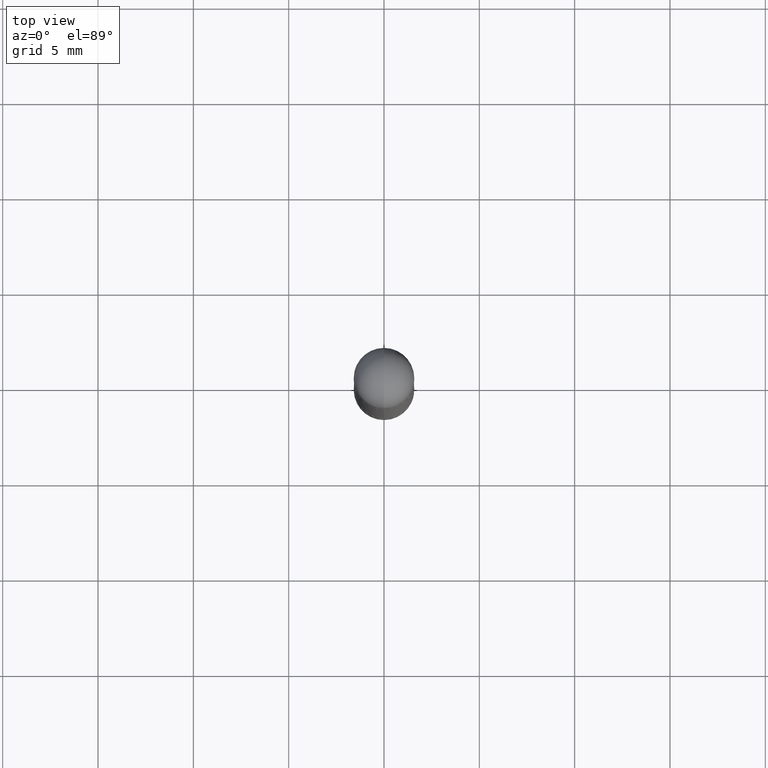
[diagram: clean part render]
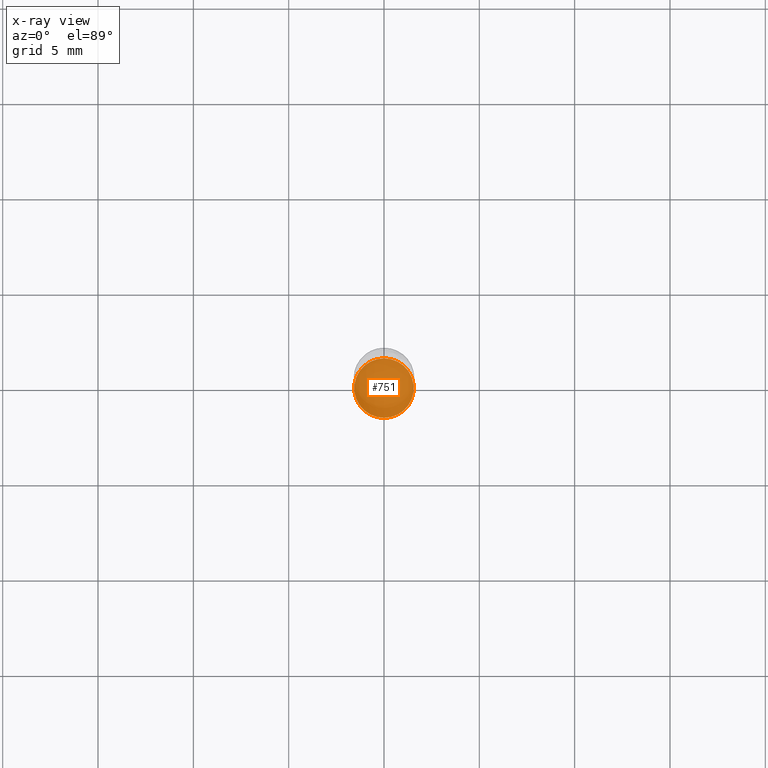
[diagram: x-ray — body ghosted, one internal face saturated and labeled with its STEP entity id]
A machine part, top view, then the same camera in x-ray: the body is ghosted and one INTERNAL B-rep face — a face not visible from any outside direction — is saturated and labeled: STEP entity #751.
In plain terms, the highlighted planar face has unit normal (-0, 0, 1).
Its self-contained STEP definition (entity closure, byte-faithful):
#16 = DIRECTION ( 'NONE',  ( -2.436379544779364188E-29, 3.504497678504843600E-15, 1.000000000000000000 ) ) ;
#71 = VERTEX_POINT ( 'NONE', #465 ) ;
#141 = DIRECTION ( 'NONE',  ( -6.982962677686265922E-15, -1.000000000000000000, 4.442029257990669764E-15 ) ) ;
#145 = EDGE_LOOP ( 'NONE', ( #576, #715 ) ) ;
#150 = CIRCLE ( 'NONE', #294, 0.06150000000000003381 ) ;
#192 = DIRECTION ( 'NONE',  ( -2.436379544779363627E-29, 3.504497678504843994E-15, 1.000000000000000000 ) ) ;
#223 = AXIS2_PLACEMENT_3D ( 'NONE', #758, #192, #564 ) ;
#272 = CIRCLE ( 'NONE', #629, 0.06150000000000003381 ) ;
#294 = AXIS2_PLACEMENT_3D ( 'NONE', #475, #428, #368 ) ;
#368 = DIRECTION ( 'NONE',  ( -6.982962677686265922E-15, -1.000000000000000000, 4.442029257990669764E-15 ) ) ;
#392 = EDGE_CURVE ( 'NONE', #71, #773, #272, .T. ) ;
#428 = DIRECTION ( 'NONE',  ( -2.436379544779364188E-29, 3.504497678504843600E-15, 1.000000000000000000 ) ) ;
#465 = CARTESIAN_POINT ( 'NONE',  ( 4.405364961712933214E-16, 0.06149999999999564843, -1.250000000000000222 ) ) ;
#475 = CARTESIAN_POINT ( 'NONE',  ( 3.045474430974205165E-29, -4.380622098131054598E-15, -1.250000000000000000 ) ) ;
#489 = CARTESIAN_POINT ( 'NONE',  ( -4.294522046776751361E-16, -0.06150000000000441225, -1.249999999999999778 ) ) ;
#496 = FACE_OUTER_BOUND ( 'NONE', #145, .T. ) ;
#519 = CARTESIAN_POINT ( 'NONE',  ( 3.045474430974205165E-29, -4.380622098131054598E-15, -1.250000000000000000 ) ) ;
#564 = DIRECTION ( 'NONE',  ( -6.982962677686265922E-15, -1.000000000000000000, 3.504497678504843994E-15 ) ) ;
#576 = ORIENTED_EDGE ( 'NONE', *, *, #626, .F. ) ;
#626 = EDGE_CURVE ( 'NONE', #773, #71, #150, .T. ) ;
#629 = AXIS2_PLACEMENT_3D ( 'NONE', #519, #16, #141 ) ;
#694 = PLANE ( 'NONE',  #223 ) ;
#715 = ORIENTED_EDGE ( 'NONE', *, *, #392, .F. ) ;
#751 = ADVANCED_FACE ( 'NONE', ( #496 ), #694, .F. ) ;
#758 = CARTESIAN_POINT ( 'NONE',  ( 3.045474430974205165E-29, -4.380622098131054598E-15, -1.250000000000000000 ) ) ;
#773 = VERTEX_POINT ( 'NONE', #489 ) ;